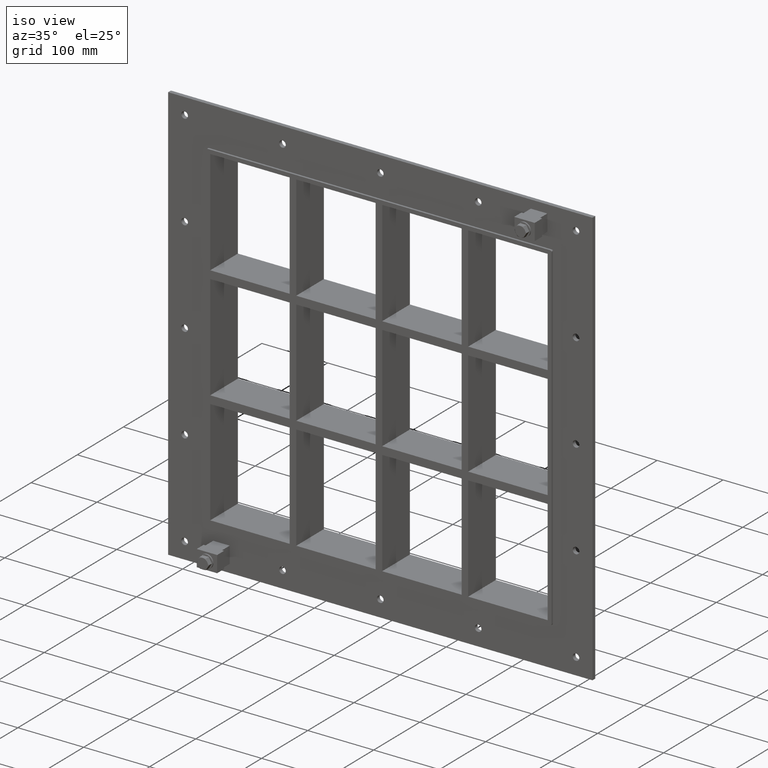
[diagram: clean part render]
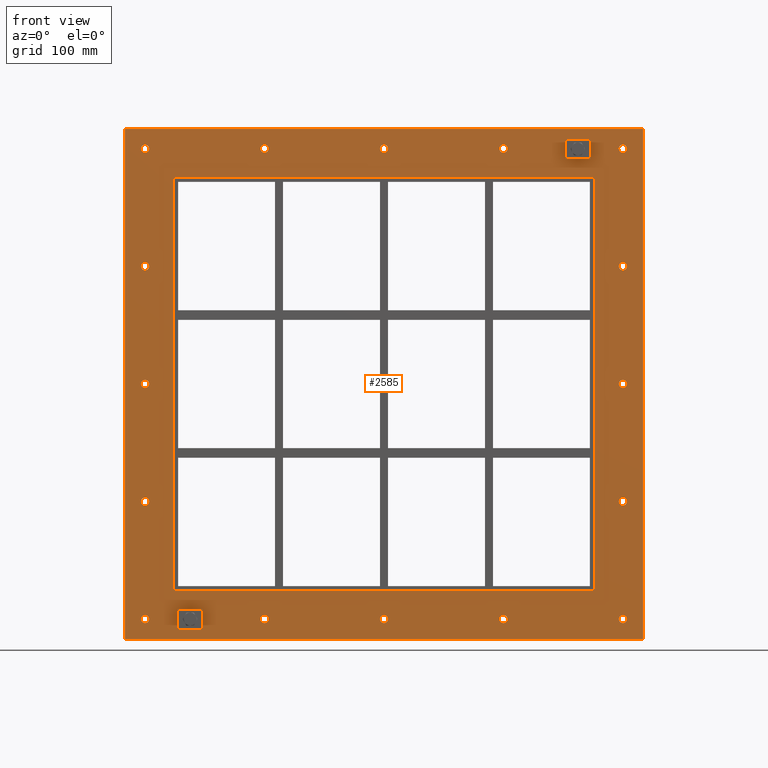
[diagram: tour spotlight — one face highlighted and labeled with its STEP entity id]
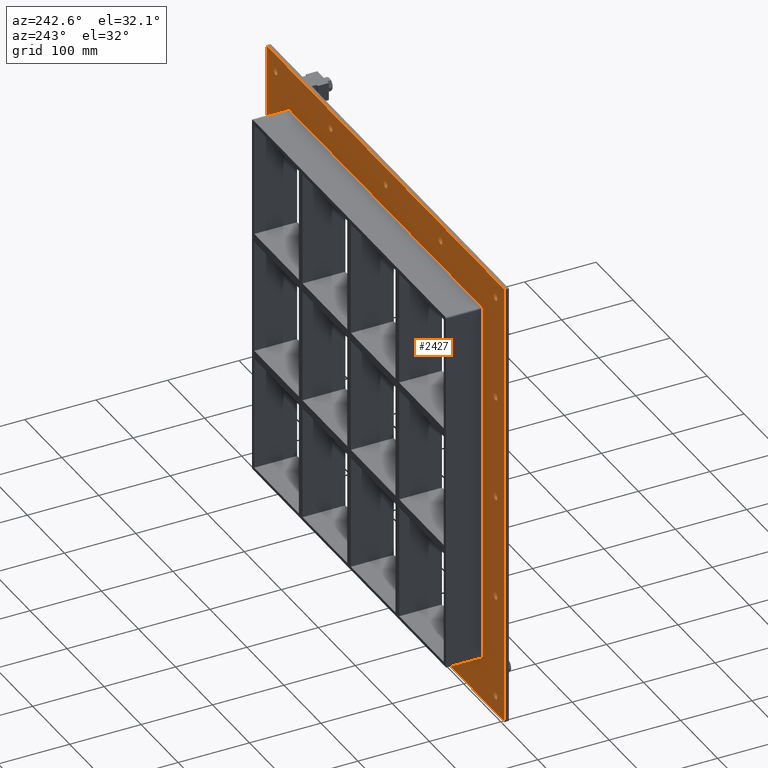
[diagram: tour spotlight — one face highlighted and labeled with its STEP entity id]
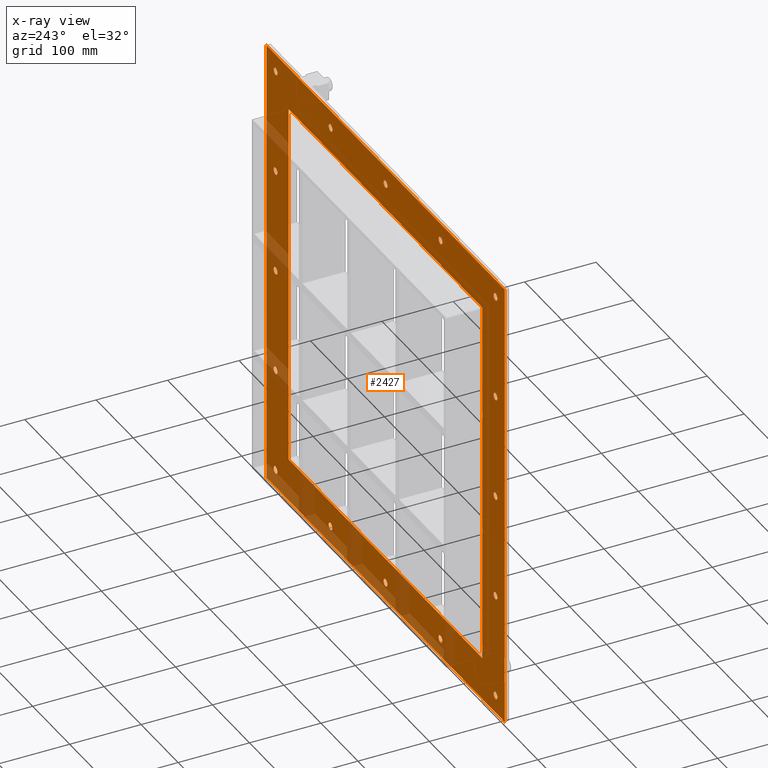
[diagram: x-ray of the same camera — body ghosted, this tour face saturated]
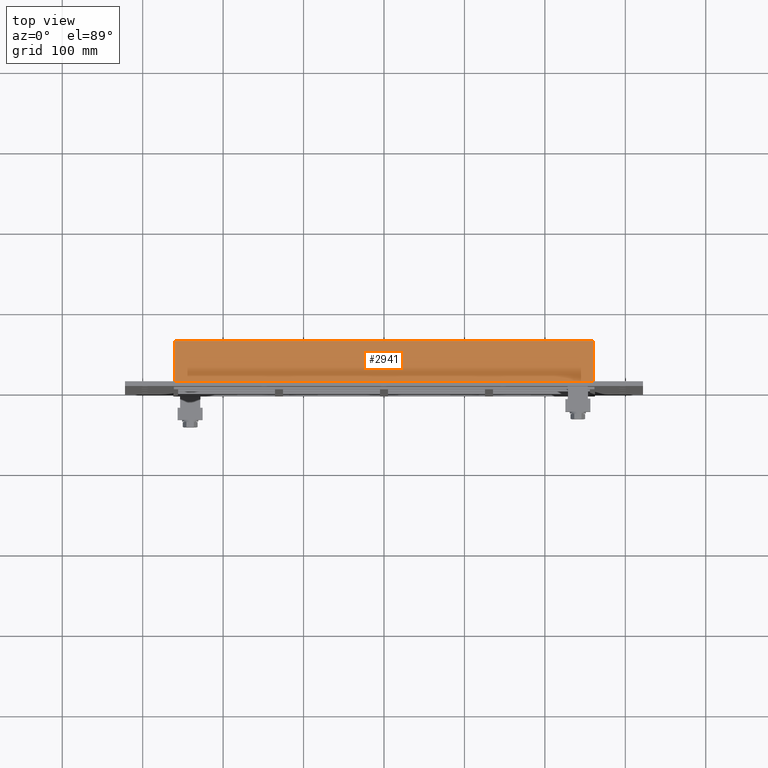
[diagram: tour spotlight — one face highlighted and labeled with its STEP entity id]
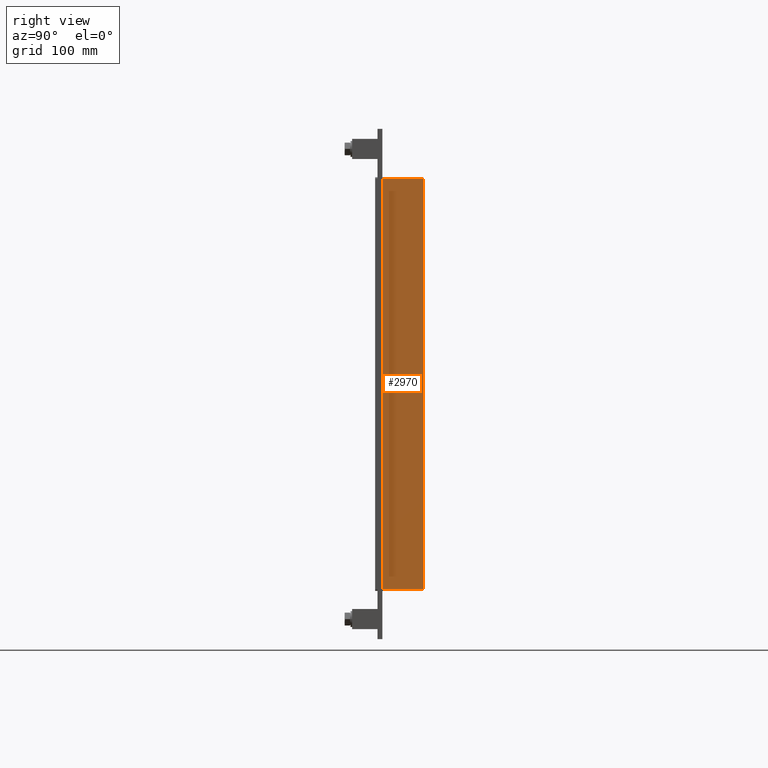
[diagram: tour spotlight — one face highlighted and labeled with its STEP entity id]
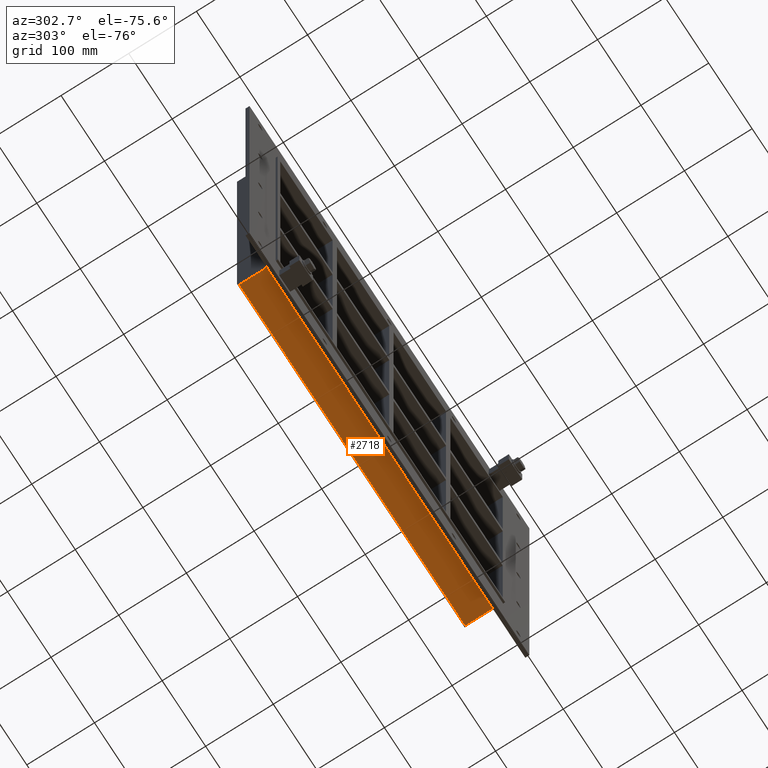
[diagram: tour spotlight — one face highlighted and labeled with its STEP entity id]
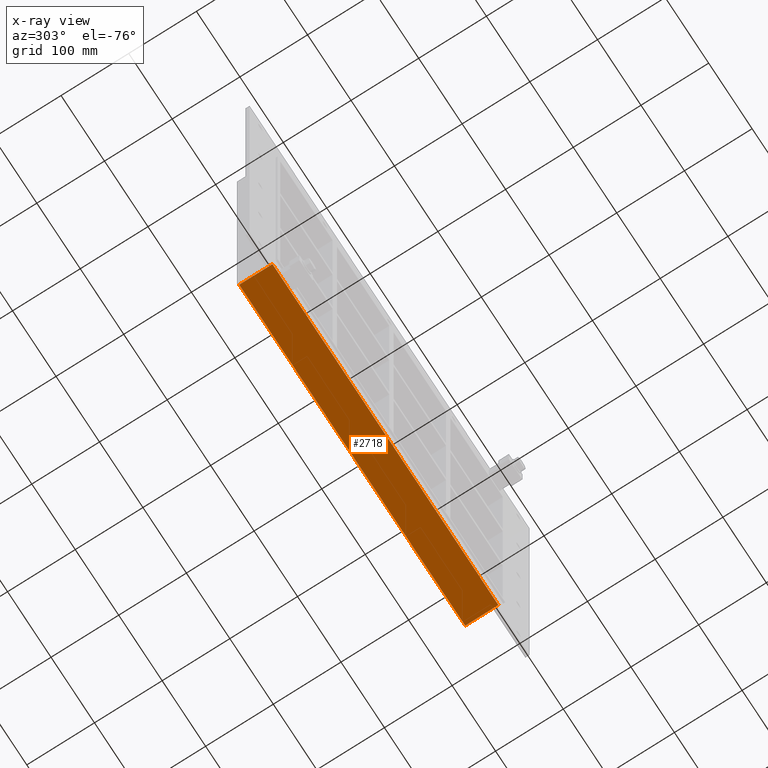
[diagram: x-ray of the same camera — body ghosted, this tour face saturated]
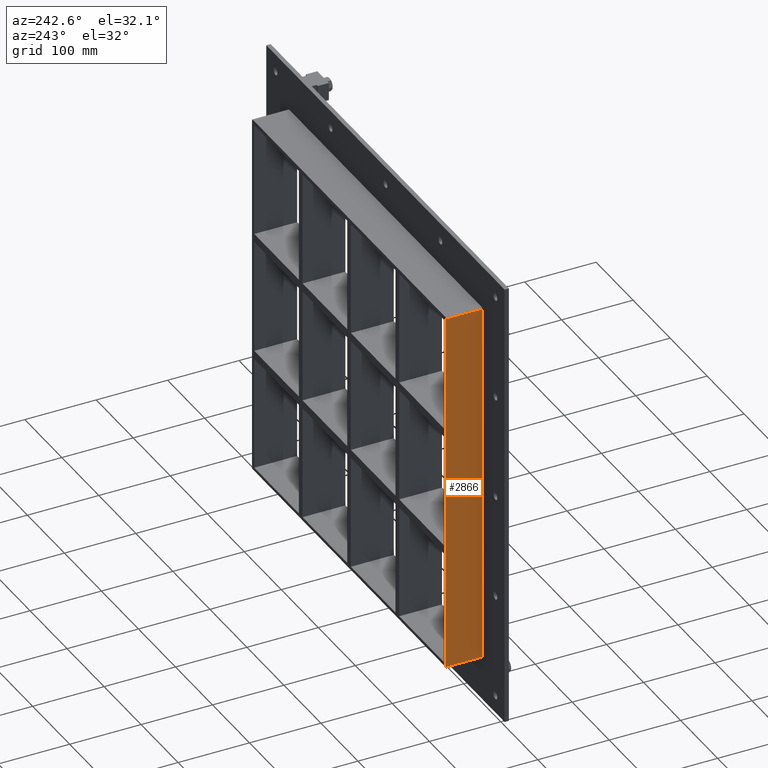
[diagram: tour spotlight — one face highlighted and labeled with its STEP entity id]
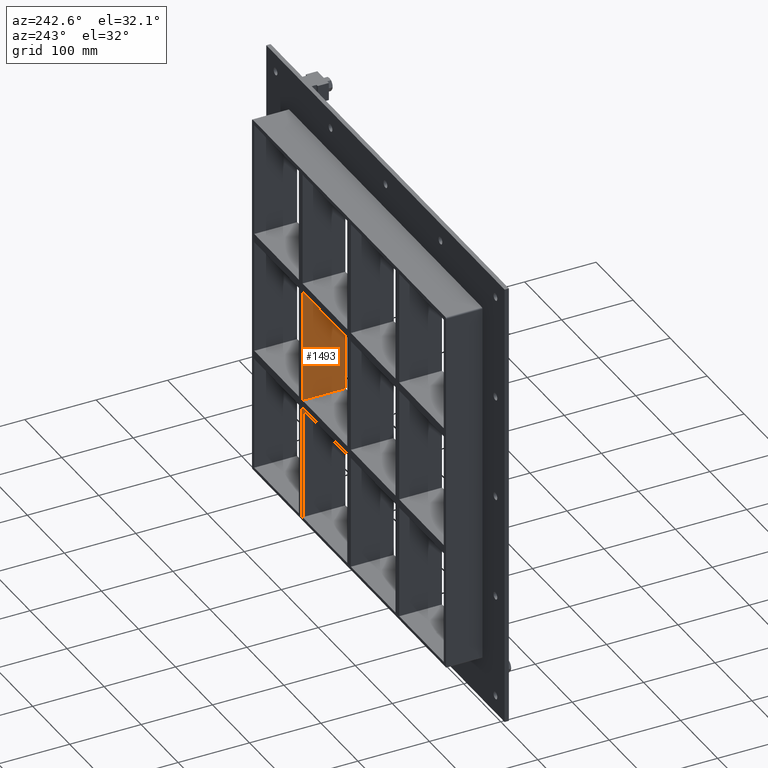
[diagram: tour spotlight — one face highlighted and labeled with its STEP entity id]
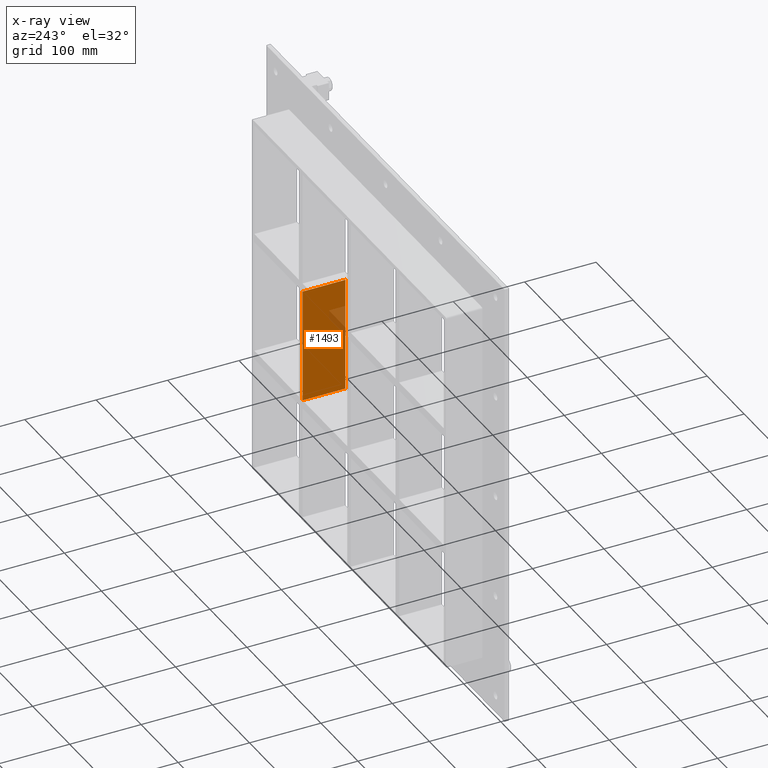
[diagram: x-ray of the same camera — body ghosted, this tour face saturated]
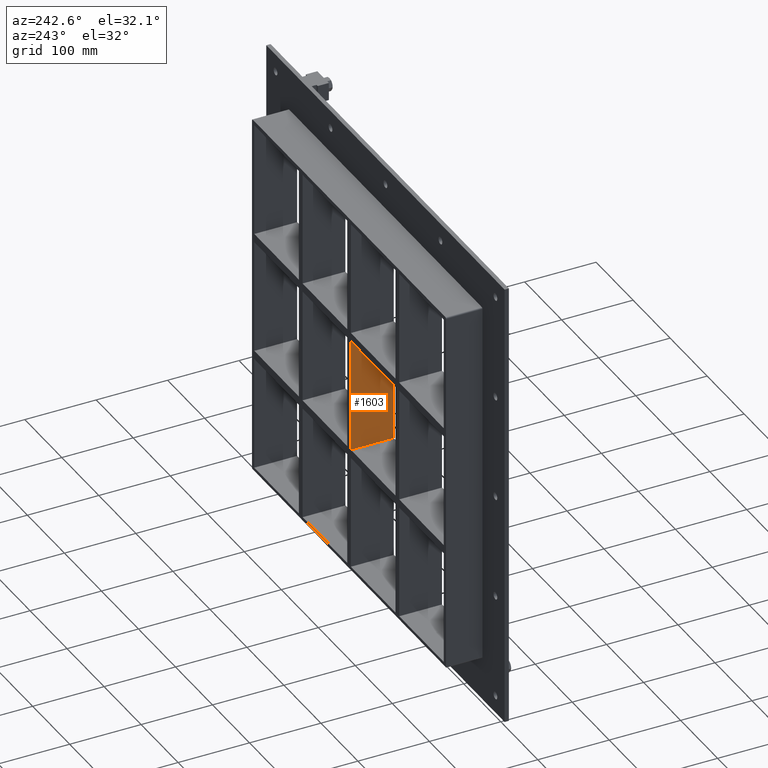
[diagram: tour spotlight — one face highlighted and labeled with its STEP entity id]
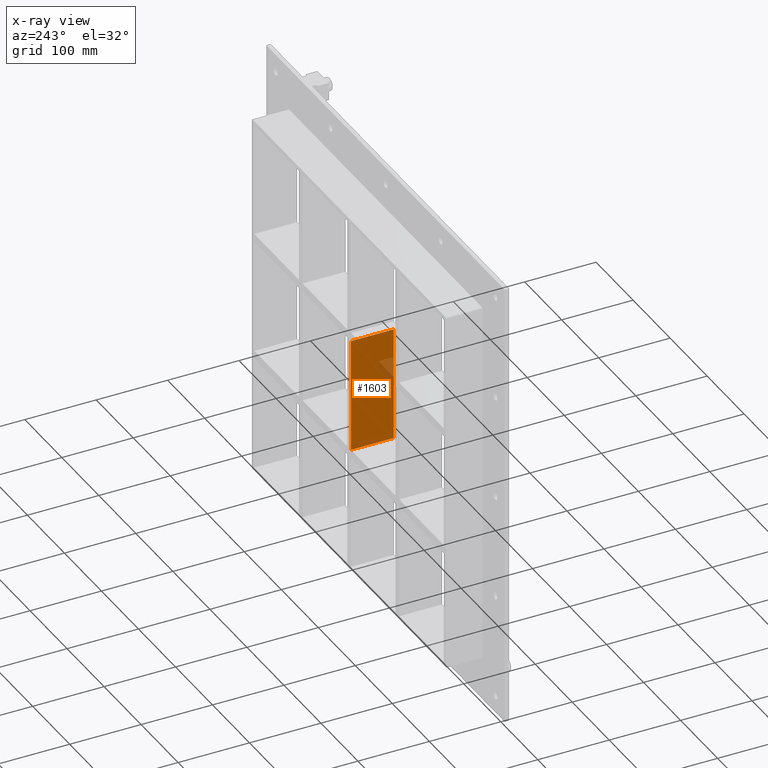
[diagram: x-ray of the same camera — body ghosted, this tour face saturated]
A machine part: a face-by-face anatomy tour. The part has 167 B-rep faces; the first image is the clean iso view, then the 8 largest visible faces are spotlighted one at a time (largest first), each with its STEP entity span.

Face 1 — front view, entity #2585. In plain terms, the highlighted planar face has unit normal (0, 1, 0).
Definition (entity closure, byte-faithful):
#84=CARTESIAN_POINT('',(-292.00000000000006,0.0,-292.25));
#85=VERTEX_POINT('',#84);
#86=CARTESIAN_POINT('',(-297.00000000000006,0.0,-292.25));
#87=DIRECTION('',(0.0,1.0,0.0));
#88=DIRECTION('',(1.0,0.0,0.0));
#89=AXIS2_PLACEMENT_3D('',#86,#87,#88);
#90=CIRCLE('',#89,5.0);
#91=EDGE_CURVE('',#85,#85,#90,.T.);
#112=CARTESIAN_POINT('',(302.0,0.0,-146.05000000000007));
#113=VERTEX_POINT('',#112);
#114=CARTESIAN_POINT('',(297.0,0.0,-146.05000000000007));
#115=DIRECTION('',(0.0,1.0,0.0));
#116=DIRECTION('',(1.0,0.0,0.0));
#117=AXIS2_PLACEMENT_3D('',#114,#115,#116);
#118=CIRCLE('',#117,5.0);
#119=EDGE_CURVE('',#113,#113,#118,.T.);
#140=CARTESIAN_POINT('',(-292.00000000000006,0.0,-146.05000000000007));
#141=VERTEX_POINT('',#140);
#142=CARTESIAN_POINT('',(-297.00000000000006,0.0,-146.05000000000007));
#143=DIRECTION('',(0.0,1.0,0.0));
#144=DIRECTION('',(1.0,0.0,0.0));
#145=AXIS2_PLACEMENT_3D('',#142,#143,#144);
#146=CIRCLE('',#145,5.0);
#147=EDGE_CURVE('',#141,#141,#146,.T.);
#168=CARTESIAN_POINT('',(302.0,0.0,0.14999999999997));
#169=VERTEX_POINT('',#168);
#170=CARTESIAN_POINT('',(297.0,0.0,0.14999999999997));
#171=DIRECTION('',(0.0,1.0,0.0));
#172=DIRECTION('',(1.0,0.0,0.0));
#173=AXIS2_PLACEMENT_3D('',#170,#171,#172);
#174=CIRCLE('',#173,5.0);
#175=EDGE_CURVE('',#169,#169,#174,.T.);
#196=CARTESIAN_POINT('',(-292.00000000000006,0.0,0.14999999999997));
#197=VERTEX_POINT('',#196);
#198=CARTESIAN_POINT('',(-297.00000000000006,0.0,0.14999999999997));
#199=DIRECTION('',(0.0,1.0,0.0));
#200=DIRECTION('',(1.0,0.0,0.0));
#201=AXIS2_PLACEMENT_3D('',#198,#199,#200);
#202=CIRCLE('',#201,5.0);
#203=EDGE_CURVE('',#197,#197,#202,.T.);
#224=CARTESIAN_POINT('',(302.0,0.0,146.34999999999997));
#225=VERTEX_POINT('',#224);
#226=CARTESIAN_POINT('',(297.0,0.0,146.34999999999997));
#227=DIRECTION('',(0.0,1.0,0.0));
#228=DIRECTION('',(1.0,0.0,0.0));
#229=AXIS2_PLACEMENT_3D('',#226,#227,#228);
#230=CIRCLE('',#229,5.0);
#231=EDGE_CURVE('',#225,#225,#230,.T.);
#252=CARTESIAN_POINT('',(-292.00000000000006,0.0,146.34999999999997));
#253=VERTEX_POINT('',#252);
#254=CARTESIAN_POINT('',(-297.00000000000006,0.0,146.34999999999997));
#255=DIRECTION('',(0.0,1.0,0.0));
#256=DIRECTION('',(1.0,0.0,0.0));
#257=AXIS2_PLACEMENT_3D('',#254,#255,#256);
#258=CIRCLE('',#257,5.0);
#259=EDGE_CURVE('',#253,#253,#258,.T.);
#280=CARTESIAN_POINT('',(-143.50000000000006,0.0,292.54999999999995));
#281=VERTEX_POINT('',#280);
#282=CARTESIAN_POINT('',(-148.50000000000006,0.0,292.54999999999995));
#283=DIRECTION('',(0.0,1.0,0.0));
#284=DIRECTION('',(1.0,0.0,0.0));
#285=AXIS2_PLACEMENT_3D('',#282,#283,#284);
#286=CIRCLE('',#285,5.0);
#287=EDGE_CURVE('',#281,#281,#286,.T.);
#308=CARTESIAN_POINT('',(-143.50000000000009,0.0,-292.25));
#309=VERTEX_POINT('',#308);
#310=CARTESIAN_POINT('',(-148.50000000000009,0.0,-292.25));
#311=DIRECTION('',(0.0,1.0,0.0));
#312=DIRECTION('',(1.0,0.0,0.0));
#313=AXIS2_PLACEMENT_3D('',#310,#311,#312);
#314=CIRCLE('',#313,5.0);
#315=EDGE_CURVE('',#309,#309,#314,.T.);
#336=CARTESIAN_POINT('',(4.999999999999965,0.0,292.54999999999995));
#337=VERTEX_POINT('',#336);
#338=CARTESIAN_POINT('',(-3.552714E-014,0.0,292.54999999999995));
#339=DIRECTION('',(0.0,1.0,0.0));
#340=DIRECTION('',(1.0,0.0,0.0));
#341=AXIS2_PLACEMENT_3D('',#338,#339,#340);
#342=CIRCLE('',#341,5.0);
#343=EDGE_CURVE('',#337,#337,#342,.T.);
#364=CARTESIAN_POINT('',(4.999999999999929,0.0,-292.25));
#365=VERTEX_POINT('',#364);
#366=CARTESIAN_POINT('',(-7.105427E-014,0.0,-292.25));
#367=DIRECTION('',(0.0,1.0,0.0));
#368=DIRECTION('',(1.0,0.0,0.0));
#369=AXIS2_PLACEMENT_3D('',#366,#367,#368);
#370=CIRCLE('',#369,5.0);
#371=EDGE_CURVE('',#365,#365,#370,.T.);
#392=CARTESIAN_POINT('',(153.49999999999997,0.0,292.54999999999995));
#393=VERTEX_POINT('',#392);
#394=CARTESIAN_POINT('',(148.49999999999997,0.0,292.54999999999995));
#395=DIRECTION('',(0.0,1.0,0.0));
#396=DIRECTION('',(1.0,0.0,0.0));
#397=AXIS2_PLACEMENT_3D('',#394,#395,#396);
#398=CIRCLE('',#397,5.0);
#399=EDGE_CURVE('',#393,#393,#398,.T.);
#420=CARTESIAN_POINT('',(153.49999999999994,0.0,-292.25));
#421=VERTEX_POINT('',#420);
#422=CARTESIAN_POINT('',(148.49999999999994,0.0,-292.25));
#423=DIRECTION('',(0.0,1.0,0.0));
#424=DIRECTION('',(1.0,0.0,0.0));
#425=AXIS2_PLACEMENT_3D('',#422,#423,#424);
#426=CIRCLE('',#425,5.0);
#427=EDGE_CURVE('',#421,#421,#426,.T.);
#448=CARTESIAN_POINT('',(301.99999999999994,0.0,-292.25));
#449=VERTEX_POINT('',#448);
#450=CARTESIAN_POINT('',(296.99999999999994,0.0,-292.25));
#451=DIRECTION('',(0.0,1.0,0.0));
#452=DIRECTION('',(1.0,0.0,0.0));
#453=AXIS2_PLACEMENT_3D('',#450,#451,#452);
#454=CIRCLE('',#453,5.0);
#455=EDGE_CURVE('',#449,#449,#454,.T.);
#476=CARTESIAN_POINT('',(-292.00000000000006,0.0,292.54999999999995));
#477=VERTEX_POINT('',#476);
#478=CARTESIAN_POINT('',(-297.00000000000006,0.0,292.54999999999995));
#479=DIRECTION('',(0.0,1.0,0.0));
#480=DIRECTION('',(1.0,0.0,0.0));
#481=AXIS2_PLACEMENT_3D('',#478,#479,#480);
#482=CIRCLE('',#481,5.0);
#483=EDGE_CURVE('',#477,#477,#482,.T.);
#504=CARTESIAN_POINT('',(302.0,0.0,292.54999999999995));
#505=VERTEX_POINT('',#504);
#506=CARTESIAN_POINT('',(297.0,0.0,292.54999999999995));
#507=DIRECTION('',(0.0,1.0,0.0));
#508=DIRECTION('',(1.0,0.0,0.0));
#509=AXIS2_PLACEMENT_3D('',#506,#507,#508);
#510=CIRCLE('',#509,5.0);
#511=EDGE_CURVE('',#505,#505,#510,.T.);
#2428=CARTESIAN_POINT('',(0.0,0.0,0.0));
#2429=DIRECTION('',(0.0,1.0,0.0));
#2430=DIRECTION('',(0.0,0.0,1.0));
#2431=AXIS2_PLACEMENT_3D('',#2428,#2429,#2430);
#2432=PLANE('',#2431);
#2433=CARTESIAN_POINT('',(-321.99999999999994,0.0,317.25));
#2434=VERTEX_POINT('',#2433);
#2435=CARTESIAN_POINT('',(321.99999999999994,0.0,317.25));
#2436=VERTEX_POINT('',#2435);
#2437=CARTESIAN_POINT('',(-321.99999999999994,0.0,317.25));
#2438=DIRECTION('',(1.0,0.0,0.0));
#2439=VECTOR('',#2438,643.99999999999989);
#2440=LINE('',#2437,#2439);
#2441=EDGE_CURVE('',#2434,#2436,#2440,.T.);
#2442=ORIENTED_EDGE('',*,*,#2441,.F.);
#2443=CARTESIAN_POINT('',(-321.99999999999994,0.0,-317.25));
#2444=VERTEX_POINT('',#2443);
#2445=CARTESIAN_POINT('',(-321.99999999999994,0.0,-317.25));
#2446=DIRECTION('',(0.0,0.0,1.0));
#2447=VECTOR('',#2446,634.5);
#2448=LINE('',#2445,#2447);
#2449=EDGE_CURVE('',#2444,#2434,#2448,.T.);
#2450=ORIENTED_EDGE('',*,*,#2449,.F.);
#2451=CARTESIAN_POINT('',(321.99999999999994,0.0,-317.25));
#2452=VERTEX_POINT('',#2451);
#2453=CARTESIAN_POINT('',(321.99999999999994,0.0,-317.25));
#2454=DIRECTION('',(-1.0,0.0,0.0));
#2455=VECTOR('',#2454,643.99999999999989);
#2456=LINE('',#2453,#2455);
#2457=EDGE_CURVE('',#2452,#2444,#2456,.T.);
#2458=ORIENTED_EDGE('',*,*,#2457,.F.);
#2459=CARTESIAN_POINT('',(321.99999999999994,0.0,317.25));
#2460=DIRECTION('',(0.0,0.0,-1.0));
#2461=VECTOR('',#2460,634.5);
#2462=LINE('',#2459,#2461);
#2463=EDGE_CURVE('',#2436,#2452,#2462,.T.);
#2464=ORIENTED_EDGE('',*,*,#2463,.F.);
#2465=EDGE_LOOP('',(#2442,#2450,#2458,#2464));
#2466=FACE_OUTER_BOUND('',#2465,.T.);
#2467=ORIENTED_EDGE('',*,*,#91,.T.);
#2468=EDGE_LOOP('',(#2467));
#2469=FACE_BOUND('',#2468,.T.);
#2470=ORIENTED_EDGE('',*,*,#119,.T.);
#2471=EDGE_LOOP('',(#2470));
#2472=FACE_BOUND('',#2471,.T.);
#2473=ORIENTED_EDGE('',*,*,#147,.T.);
#2474=EDGE_LOOP('',(#2473));
#2475=FACE_BOUND('',#2474,.T.);
#2476=ORIENTED_EDGE('',*,*,#175,.T.);
#2477=EDGE_LOOP('',(#2476));
#2478=FACE_BOUND('',#2477,.T.);
#2479=ORIENTED_EDGE('',*,*,#203,.T.);
#2480=EDGE_LOOP('',(#2479));
#2481=FACE_BOUND('',#2480,.T.);
#2482=ORIENTED_EDGE('',*,*,#231,.T.);
#2483=EDGE_LOOP('',(#2482));
#2484=FACE_BOUND('',#2483,.T.);
#2485=ORIENTED_EDGE('',*,*,#259,.T.);
#2486=EDGE_LOOP('',(#2485));
#2487=FACE_BOUND('',#2486,.T.);
#2488=ORIENTED_EDGE('',*,*,#287,.T.);
#2489=EDGE_LOOP('',(#2488));
#2490=FACE_BOUND('',#2489,.T.);
#2491=ORIENTED_EDGE('',*,*,#315,.T.);
#2492=EDGE_LOOP('',(#2491));
#2493=FACE_BOUND('',#2492,.T.);
#2494=ORIENTED_EDGE('',*,*,#343,.T.);
#2495=EDGE_LOOP('',(#2494));
#2496=FACE_BOUND('',#2495,.T.);
#2497=ORIENTED_EDGE('',*,*,#371,.T.);
#2498=EDGE_LOOP('',(#2497));
#2499=FACE_BOUND('',#2498,.T.);
#2500=ORIENTED_EDGE('',*,*,#399,.T.);
#2501=EDGE_LOOP('',(#2500));
#2502=FACE_BOUND('',#2501,.T.);
#2503=ORIENTED_EDGE('',*,*,#427,.T.);
#2504=EDGE_LOOP('',(#2503));
#2505=FACE_BOUND('',#2504,.T.);
#2506=ORIENTED_EDGE('',*,*,#455,.T.);
#2507=EDGE_LOOP('',(#2506));
#2508=FACE_BOUND('',#2507,.T.);
#2509=ORIENTED_EDGE('',*,*,#483,.T.);
#2510=EDGE_LOOP('',(#2509));
#2511=FACE_BOUND('',#2510,.T.);
#2512=ORIENTED_EDGE('',*,*,#511,.T.);
#2513=EDGE_LOOP('',(#2512));
#2514=FACE_BOUND('',#2513,.T.);
#2515=CARTESIAN_POINT('',(-260.0,0.0,257.25));
#2516=VERTEX_POINT('',#2515);
#2517=CARTESIAN_POINT('',(-262.0,0.0,255.25));
#2518=VERTEX_POINT('',#2517);
#2519=CARTESIAN_POINT('',(-260.0,0.0,255.25));
#2520=DIRECTION('',(0.0,-1.0,0.0));
#2521=DIRECTION('',(-0.707106781186548,0.0,0.707106781186548));
#2522=AXIS2_PLACEMENT_3D('',#2519,#2520,#2521);
#2523=CIRCLE('',#2522,2.0);
#2524=EDGE_CURVE('',#2516,#2518,#2523,.T.);
#2525=ORIENTED_EDGE('',*,*,#2524,.F.);
#2526=CARTESIAN_POINT('',(260.0,0.0,257.25));
#2527=VERTEX_POINT('',#2526);
#2528=CARTESIAN_POINT('',(260.0,0.0,257.25));
#2529=DIRECTION('',(-1.0,0.0,0.0));
#2530=VECTOR('',#2529,520.0);
#2531=LINE('',#2528,#2530);
#2532=EDGE_CURVE('',#2527,#2516,#2531,.T.);
#2533=ORIENTED_EDGE('',*,*,#2532,.F.);
#2534=CARTESIAN_POINT('',(262.0,0.0,255.25000000000003));
#2535=VERTEX_POINT('',#2534);
#2536=CARTESIAN_POINT('',(260.0,0.0,255.25000000000003));
#2537=DIRECTION('',(0.0,-1.0,0.0));
#2538=DIRECTION('',(0.70710678118656,0.0,0.707106781186535));
#2539=AXIS2_PLACEMENT_3D('',#2536,#2537,#2538);
#2540=CIRCLE('',#2539,2.0);
#2541=EDGE_CURVE('',#2535,#2527,#2540,.T.);
#2542=ORIENTED_EDGE('',*,*,#2541,.F.);
#2543=CARTESIAN_POINT('',(262.0,0.0,-255.25));
#2544=VERTEX_POINT('',#2543);
#2545=CARTESIAN_POINT('',(262.0,0.0,-255.25));
#2546=DIRECTION('',(0.0,0.0,1.0));
#2547=VECTOR('',#2546,510.5);
#2548=LINE('',#2545,#2547);
#2549=EDGE_CURVE('',#2544,#2535,#2548,.T.);
#2550=ORIENTED_EDGE('',*,*,#2549,.F.);
#2551=CARTESIAN_POINT('',(260.0,0.0,-257.25));
#2552=VERTEX_POINT('',#2551);
#2553=CARTESIAN_POINT('',(260.0,0.0,-255.25));
#2554=DIRECTION('',(0.0,-1.0,0.0));
#2555=DIRECTION('',(0.707106781186548,0.0,-0.707106781186548));
#2556=AXIS2_PLACEMENT_3D('',#2553,#2554,#2555);
#2557=CIRCLE('',#2556,2.0);
#2558=EDGE_CURVE('',#2552,#2544,#2557,.T.);
#2559=ORIENTED_EDGE('',*,*,#2558,.F.);
#2560=CARTESIAN_POINT('',(-260.0,0.0,-257.25));
#2561=VERTEX_POINT('',#2560);
#2562=CARTESIAN_POINT('',(-260.0,0.0,-257.25));
#2563=DIRECTION('',(1.0,0.0,0.0));
#2564=VECTOR('',#2563,520.0);
#2565=LINE('',#2562,#2564);
#2566=EDGE_CURVE('',#2561,#2552,#2565,.T.);
#2567=ORIENTED_EDGE('',*,*,#2566,.F.);
#2568=CARTESIAN_POINT('',(-262.0,0.0,-255.25));
#2569=VERTEX_POINT('',#2568);
#2570=CARTESIAN_POINT('',(-260.0,0.0,-255.25));
#2571=DIRECTION('',(0.0,-1.0,0.0));
#2572=DIRECTION('',(-0.707106781186548,0.0,-0.707106781186548));
#2573=AXIS2_PLACEMENT_3D('',#2570,#2571,#2572);
#2574=CIRCLE('',#2573,2.0);
#2575=EDGE_CURVE('',#2569,#2561,#2574,.T.);
#2576=ORIENTED_EDGE('',*,*,#2575,.F.);
#2577=CARTESIAN_POINT('',(-262.0,0.0,255.25));
#2578=DIRECTION('',(0.0,0.0,-1.0));
#2579=VECTOR('',#2578,510.5);
#2580=LINE('',#2577,#2579);
#2581=EDGE_CURVE('',#2518,#2569,#2580,.T.);
#2582=ORIENTED_EDGE('',*,*,#2581,.F.);
#2583=EDGE_LOOP('',(#2525,#2533,#2542,#2550,#2559,#2567,#2576,#2582));
#2584=FACE_BOUND('',#2583,.T.);
#2585=ADVANCED_FACE('',(#2466,#2469,#2472,#2475,#2478,#2481,#2484,#2487,#2490,#2493,#2496,#2499,#2502,#2505,#2508,#2511,#2514,#2584),#2432,.F.);

Face 2 — auxiliary view, entity #2427. An x-ray twin of the same camera follows (body ghosted, this face saturated) — the face is partly hidden behind the body. In plain terms, the highlighted planar face has unit normal (0, 1, 0).
Definition (entity closure, byte-faithful):
#73=CARTESIAN_POINT('',(-302.00000000000006,5.999999999999943,-292.25));
#74=VERTEX_POINT('',#73);
#75=CARTESIAN_POINT('',(-297.00000000000006,5.999999999999943,-292.25));
#76=DIRECTION('',(0.0,-1.0,0.0));
#77=DIRECTION('',(1.0,0.0,0.0));
#78=AXIS2_PLACEMENT_3D('',#75,#76,#77);
#79=CIRCLE('',#78,5.0);
#80=EDGE_CURVE('',#74,#74,#79,.T.);
#101=CARTESIAN_POINT('',(292.0,5.999999999999943,-146.05000000000007));
#102=VERTEX_POINT('',#101);
#103=CARTESIAN_POINT('',(297.0,5.999999999999943,-146.05000000000007));
#104=DIRECTION('',(0.0,-1.0,0.0));
#105=DIRECTION('',(1.0,0.0,0.0));
#106=AXIS2_PLACEMENT_3D('',#103,#104,#105);
#107=CIRCLE('',#106,5.0);
#108=EDGE_CURVE('',#102,#102,#107,.T.);
#129=CARTESIAN_POINT('',(-302.00000000000006,5.999999999999943,-146.05000000000007));
#130=VERTEX_POINT('',#129);
#131=CARTESIAN_POINT('',(-297.00000000000006,5.999999999999943,-146.05000000000007));
#132=DIRECTION('',(0.0,-1.0,0.0));
#133=DIRECTION('',(1.0,0.0,0.0));
#134=AXIS2_PLACEMENT_3D('',#131,#132,#133);
#135=CIRCLE('',#134,5.0);
#136=EDGE_CURVE('',#130,#130,#135,.T.);
#157=CARTESIAN_POINT('',(292.0,5.999999999999943,0.14999999999997));
#158=VERTEX_POINT('',#157);
#159=CARTESIAN_POINT('',(297.0,5.999999999999943,0.14999999999997));
#160=DIRECTION('',(0.0,-1.0,0.0));
#161=DIRECTION('',(1.0,0.0,0.0));
#162=AXIS2_PLACEMENT_3D('',#159,#160,#161);
#163=CIRCLE('',#162,5.0);
#164=EDGE_CURVE('',#158,#158,#163,.T.);
#185=CARTESIAN_POINT('',(-302.00000000000006,5.999999999999943,0.14999999999997));
#186=VERTEX_POINT('',#185);
#187=CARTESIAN_POINT('',(-297.00000000000006,5.999999999999943,0.14999999999997));
#188=DIRECTION('',(0.0,-1.0,0.0));
#189=DIRECTION('',(1.0,0.0,0.0));
#190=AXIS2_PLACEMENT_3D('',#187,#188,#189);
#191=CIRCLE('',#190,5.0);
#192=EDGE_CURVE('',#186,#186,#191,.T.);
#213=CARTESIAN_POINT('',(292.0,5.999999999999943,146.34999999999997));
#214=VERTEX_POINT('',#213);
#215=CARTESIAN_POINT('',(297.0,5.999999999999943,146.34999999999997));
#216=DIRECTION('',(0.0,-1.0,0.0));
#217=DIRECTION('',(1.0,0.0,0.0));
#218=AXIS2_PLACEMENT_3D('',#215,#216,#217);
#219=CIRCLE('',#218,5.0);
#220=EDGE_CURVE('',#214,#214,#219,.T.);
#241=CARTESIAN_POINT('',(-302.00000000000006,5.999999999999943,146.34999999999997));
#242=VERTEX_POINT('',#241);
#243=CARTESIAN_POINT('',(-297.00000000000006,5.999999999999943,146.34999999999997));
#244=DIRECTION('',(0.0,-1.0,0.0));
#245=DIRECTION('',(1.0,0.0,0.0));
#246=AXIS2_PLACEMENT_3D('',#243,#244,#245);
#247=CIRCLE('',#246,5.0);
#248=EDGE_CURVE('',#242,#242,#247,.T.);
#269=CARTESIAN_POINT('',(-153.50000000000006,5.999999999999943,292.54999999999995));
#270=VERTEX_POINT('',#269);
#271=CARTESIAN_POINT('',(-148.50000000000006,5.999999999999943,292.54999999999995));
#272=DIRECTION('',(0.0,-1.0,0.0));
#273=DIRECTION('',(1.0,0.0,0.0));
#274=AXIS2_PLACEMENT_3D('',#271,#272,#273);
#275=CIRCLE('',#274,5.0);
#276=EDGE_CURVE('',#270,#270,#275,.T.);
#297=CARTESIAN_POINT('',(-153.50000000000009,5.999999999999943,-292.25));
#298=VERTEX_POINT('',#297);
#299=CARTESIAN_POINT('',(-148.50000000000009,5.999999999999943,-292.25));
#300=DIRECTION('',(0.0,-1.0,0.0));
#301=DIRECTION('',(1.0,0.0,0.0));
#302=AXIS2_PLACEMENT_3D('',#299,#300,#301);
#303=CIRCLE('',#302,5.0);
#304=EDGE_CURVE('',#298,#298,#303,.T.);
#325=CARTESIAN_POINT('',(-5.000000000000036,5.999999999999943,292.54999999999995));
#326=VERTEX_POINT('',#325);
#327=CARTESIAN_POINT('',(-3.552714E-014,5.999999999999943,292.54999999999995));
#328=DIRECTION('',(0.0,-1.0,0.0));
#329=DIRECTION('',(1.0,0.0,0.0));
#330=AXIS2_PLACEMENT_3D('',#327,#328,#329);
#331=CIRCLE('',#330,5.0);
#332=EDGE_CURVE('',#326,#326,#331,.T.);
#353=CARTESIAN_POINT('',(-5.000000000000071,5.999999999999943,-292.25));
#354=VERTEX_POINT('',#353);
#355=CARTESIAN_POINT('',(-7.105427E-014,5.999999999999943,-292.25));
#356=DIRECTION('',(0.0,-1.0,0.0));
#357=DIRECTION('',(1.0,0.0,0.0));
#358=AXIS2_PLACEMENT_3D('',#355,#356,#357);
#359=CIRCLE('',#358,5.0);
#360=EDGE_CURVE('',#354,#354,#359,.T.);
#381=CARTESIAN_POINT('',(143.49999999999997,5.999999999999943,292.54999999999995));
#382=VERTEX_POINT('',#381);
#383=CARTESIAN_POINT('',(148.49999999999997,5.999999999999943,292.54999999999995));
#384=DIRECTION('',(0.0,-1.0,0.0));
#385=DIRECTION('',(1.0,0.0,0.0));
#386=AXIS2_PLACEMENT_3D('',#383,#384,#385);
#387=CIRCLE('',#386,5.0);
#388=EDGE_CURVE('',#382,#382,#387,.T.);
#409=CARTESIAN_POINT('',(143.49999999999994,5.999999999999943,-292.25));
#410=VERTEX_POINT('',#409);
#411=CARTESIAN_POINT('',(148.49999999999994,5.999999999999943,-292.25));
#412=DIRECTION('',(0.0,-1.0,0.0));
#413=DIRECTION('',(1.0,0.0,0.0));
#414=AXIS2_PLACEMENT_3D('',#411,#412,#413);
#415=CIRCLE('',#414,5.0);
#416=EDGE_CURVE('',#410,#410,#415,.T.);
#437=CARTESIAN_POINT('',(291.99999999999994,5.999999999999943,-292.25));
#438=VERTEX_POINT('',#437);
#439=CARTESIAN_POINT('',(296.99999999999994,5.999999999999943,-292.25));
#440=DIRECTION('',(0.0,-1.0,0.0));
#441=DIRECTION('',(1.0,0.0,0.0));
#442=AXIS2_PLACEMENT_3D('',#439,#440,#441);
#443=CIRCLE('',#442,5.0);
#444=EDGE_CURVE('',#438,#438,#443,.T.);
#465=CARTESIAN_POINT('',(-302.00000000000006,5.999999999999943,292.54999999999995));
#466=VERTEX_POINT('',#465);
#467=CARTESIAN_POINT('',(-297.00000000000006,5.999999999999943,292.54999999999995));
#468=DIRECTION('',(0.0,-1.0,0.0));
#469=DIRECTION('',(1.0,0.0,0.0));
#470=AXIS2_PLACEMENT_3D('',#467,#468,#469);
#471=CIRCLE('',#470,5.0);
#472=EDGE_CURVE('',#466,#466,#471,.T.);
#493=CARTESIAN_POINT('',(292.0,5.999999999999943,292.54999999999995));
#494=VERTEX_POINT('',#493);
#495=CARTESIAN_POINT('',(297.0,5.999999999999943,292.54999999999995));
#496=DIRECTION('',(0.0,-1.0,0.0));
#497=DIRECTION('',(1.0,0.0,0.0));
#498=AXIS2_PLACEMENT_3D('',#495,#496,#497);
#499=CIRCLE('',#498,5.0);
#500=EDGE_CURVE('',#494,#494,#499,.T.);
#2270=CARTESIAN_POINT('',(0.0,6.000000000000001,0.0));
#2271=DIRECTION('',(0.0,1.0,0.0));
#2272=DIRECTION('',(0.0,0.0,1.0));
#2273=AXIS2_PLACEMENT_3D('',#2270,#2271,#2272);
#2274=PLANE('',#2273);
#2275=CARTESIAN_POINT('',(-321.99999999999994,6.000000000000001,317.25));
#2276=VERTEX_POINT('',#2275);
#2277=CARTESIAN_POINT('',(321.99999999999994,6.000000000000001,317.25));
#2278=VERTEX_POINT('',#2277);
#2279=CARTESIAN_POINT('',(-321.99999999999994,6.000000000000001,317.25));
#2280=DIRECTION('',(1.0,0.0,0.0));
#2281=VECTOR('',#2280,643.99999999999989);
#2282=LINE('',#2279,#2281);
#2283=EDGE_CURVE('',#2276,#2278,#2282,.T.);
#2284=ORIENTED_EDGE('',*,*,#2283,.T.);
#2285=CARTESIAN_POINT('',(321.99999999999994,6.000000000000001,-317.25));
#2286=VERTEX_POINT('',#2285);
#2287=CARTESIAN_POINT('',(321.99999999999994,6.000000000000001,317.25));
#2288=DIRECTION('',(0.0,0.0,-1.0));
#2289=VECTOR('',#2288,634.5);
#2290=LINE('',#2287,#2289);
#2291=EDGE_CURVE('',#2278,#2286,#2290,.T.);
#2292=ORIENTED_EDGE('',*,*,#2291,.T.);
#2293=CARTESIAN_POINT('',(-321.99999999999994,6.000000000000001,-317.25));
#2294=VERTEX_POINT('',#2293);
#2295=CARTESIAN_POINT('',(321.99999999999994,6.000000000000001,-317.25));
#2296=DIRECTION('',(-1.0,0.0,0.0));
#2297=VECTOR('',#2296,643.99999999999989);
#2298=LINE('',#2295,#2297);
#2299=EDGE_CURVE('',#2286,#2294,#2298,.T.);
#2300=ORIENTED_EDGE('',*,*,#2299,.T.);
#2301=CARTESIAN_POINT('',(-321.99999999999994,6.000000000000001,-317.25));
#2302=DIRECTION('',(0.0,0.0,1.0));
#2303=VECTOR('',#2302,634.5);
#2304=LINE('',#2301,#2303);
#2305=EDGE_CURVE('',#2294,#2276,#2304,.T.);
#2306=ORIENTED_EDGE('',*,*,#2305,.T.);
#2307=EDGE_LOOP('',(#2284,#2292,#2300,#2306));
#2308=FACE_OUTER_BOUND('',#2307,.T.);
#2309=ORIENTED_EDGE('',*,*,#80,.T.);
#2310=EDGE_LOOP('',(#2309));
#2311=FACE_BOUND('',#2310,.T.);
#2312=ORIENTED_EDGE('',*,*,#108,.T.);
#2313=EDGE_LOOP('',(#2312));
#2314=FACE_BOUND('',#2313,.T.);
#2315=ORIENTED_EDGE('',*,*,#136,.T.);
#2316=EDGE_LOOP('',(#2315));
#2317=FACE_BOUND('',#2316,.T.);
#2318=ORIENTED_EDGE('',*,*,#164,.T.);
#2319=EDGE_LOOP('',(#2318));
#2320=FACE_BOUND('',#2319,.T.);
#2321=ORIENTED_EDGE('',*,*,#192,.T.);
#2322=EDGE_LOOP('',(#2321));
#2323=FACE_BOUND('',#2322,.T.);
#2324=ORIENTED_EDGE('',*,*,#220,.T.);
#2325=EDGE_LOOP('',(#2324));
#2326=FACE_BOUND('',#2325,.T.);
#2327=ORIENTED_EDGE('',*,*,#248,.T.);
#2328=EDGE_LOOP('',(#2327));
#2329=FACE_BOUND('',#2328,.T.);
#2330=ORIENTED_EDGE('',*,*,#276,.T.);
#2331=EDGE_LOOP('',(#2330));
#2332=FACE_BOUND('',#2331,.T.);
#2333=ORIENTED_EDGE('',*,*,#304,.T.);
#2334=EDGE_LOOP('',(#2333));
#2335=FACE_BOUND('',#2334,.T.);
#2336=ORIENTED_EDGE('',*,*,#332,.T.);
#2337=EDGE_LOOP('',(#2336));
#2338=FACE_BOUND('',#2337,.T.);
#2339=ORIENTED_EDGE('',*,*,#360,.T.);
#2340=EDGE_LOOP('',(#2339));
#2341=FACE_BOUND('',#2340,.T.);
#2342=ORIENTED_EDGE('',*,*,#388,.T.);
#2343=EDGE_LOOP('',(#2342));
#2344=FACE_BOUND('',#2343,.T.);
#2345=ORIENTED_EDGE('',*,*,#416,.T.);
#2346=EDGE_LOOP('',(#2345));
#2347=FACE_BOUND('',#2346,.T.);
#2348=ORIENTED_EDGE('',*,*,#444,.T.);
#2349=EDGE_LOOP('',(#2348));
#2350=FACE_BOUND('',#2349,.T.);
#2351=ORIENTED_EDGE('',*,*,#472,.T.);
#2352=EDGE_LOOP('',(#2351));
#2353=FACE_BOUND('',#2352,.T.);
#2354=ORIENTED_EDGE('',*,*,#500,.T.);
#2355=EDGE_LOOP('',(#2354));
#2356=FACE_BOUND('',#2355,.T.);
#2357=CARTESIAN_POINT('',(-262.0,6.000000000000001,255.25));
#2358=VERTEX_POINT('',#2357);
#2359=CARTESIAN_POINT('',(-260.0,6.000000000000001,257.25));
#2360=VERTEX_POINT('',#2359);
#2361=CARTESIAN_POINT('',(-260.0,6.000000000000001,255.25));
#2362=DIRECTION('',(0.0,1.0,0.0));
#2363=DIRECTION('',(-0.707106781186548,0.0,0.707106781186548));
#2364=AXIS2_PLACEMENT_3D('',#2361,#2362,#2363);
#2365=CIRCLE('',#2364,2.0);
#2366=EDGE_CURVE('',#2358,#2360,#2365,.T.);
#2367=ORIENTED_EDGE('',*,*,#2366,.F.);
#2368=CARTESIAN_POINT('',(-262.0,6.000000000000001,-255.25));
#2369=VERTEX_POINT('',#2368);
#2370=CARTESIAN_POINT('',(-262.0,6.000000000000001,-255.24999999999997));
#2371=DIRECTION('',(0.0,0.0,1.0));
#2372=VECTOR('',#2371,510.5);
#2373=LINE('',#2370,#2372);
#2374=EDGE_CURVE('',#2369,#2358,#2373,.T.);
#2375=ORIENTED_EDGE('',*,*,#2374,.F.);
#2376=CARTESIAN_POINT('',(-260.0,6.000000000000001,-257.25));
#2377=VERTEX_POINT('',#2376);
#2378=CARTESIAN_POINT('',(-260.0,6.000000000000001,-255.25));
#2379=DIRECTION('',(0.0,1.0,0.0));
#2380=DIRECTION('',(-0.707106781186548,0.0,-0.707106781186548));
#2381=AXIS2_PLACEMENT_3D('',#2378,#2379,#2380);
#2382=CIRCLE('',#2381,2.0);
#2383=EDGE_CURVE('',#2377,#2369,#2382,.T.);
#2384=ORIENTED_EDGE('',*,*,#2383,.F.);
#2385=CARTESIAN_POINT('',(260.0,6.000000000000001,-257.25));
#2386=VERTEX_POINT('',#2385);
#2387=CARTESIAN_POINT('',(260.0,6.000000000000001,-257.25));
#2388=DIRECTION('',(-1.0,0.0,0.0));
#2389=VECTOR('',#2388,520.0);
#2390=LINE('',#2387,#2389);
#2391=EDGE_CURVE('',#2386,#2377,#2390,.T.);
#2392=ORIENTED_EDGE('',*,*,#2391,.F.);
#2393=CARTESIAN_POINT('',(262.0,6.000000000000001,-255.25));
#2394=VERTEX_POINT('',#2393);
#2395=CARTESIAN_POINT('',(260.0,6.000000000000001,-255.25));
#2396=DIRECTION('',(0.0,1.0,0.0));
#2397=DIRECTION('',(0.707106781186548,0.0,-0.707106781186548));
#2398=AXIS2_PLACEMENT_3D('',#2395,#2396,#2397);
#2399=CIRCLE('',#2398,2.0);
#2400=EDGE_CURVE('',#2394,#2386,#2399,.T.);
#2401=ORIENTED_EDGE('',*,*,#2400,.F.);
#2402=CARTESIAN_POINT('',(262.0,6.000000000000001,255.25000000000003));
#2403=VERTEX_POINT('',#2402);
#2404=CARTESIAN_POINT('',(262.0,6.000000000000001,255.25));
#2405=DIRECTION('',(0.0,0.0,-1.0));
#2406=VECTOR('',#2405,510.5);
#2407=LINE('',#2404,#2406);
#2408=EDGE_CURVE('',#2403,#2394,#2407,.T.);
#2409=ORIENTED_EDGE('',*,*,#2408,.F.);
#2410=CARTESIAN_POINT('',(260.0,6.000000000000001,257.25));
#2411=VERTEX_POINT('',#2410);
#2412=CARTESIAN_POINT('',(260.0,6.000000000000001,255.25000000000003));
#2413=DIRECTION('',(0.0,1.0,0.0));
#2414=DIRECTION('',(0.70710678118656,0.0,0.707106781186535));
#2415=AXIS2_PLACEMENT_3D('',#2412,#2413,#2414);
#2416=CIRCLE('',#2415,2.0);
#2417=EDGE_CURVE('',#2411,#2403,#2416,.T.);
#2418=ORIENTED_EDGE('',*,*,#2417,.F.);
#2419=CARTESIAN_POINT('',(-260.0,6.000000000000001,257.25));
#2420=DIRECTION('',(1.0,0.0,0.0));
#2421=VECTOR('',#2420,520.0);
#2422=LINE('',#2419,#2421);
#2423=EDGE_CURVE('',#2360,#2411,#2422,.T.);
#2424=ORIENTED_EDGE('',*,*,#2423,.F.);
#2425=EDGE_LOOP('',(#2367,#2375,#2384,#2392,#2401,#2409,#2418,#2424));
#2426=FACE_BOUND('',#2425,.T.);
#2427=ADVANCED_FACE('',(#2308,#2311,#2314,#2317,#2320,#2323,#2326,#2329,#2332,#2335,#2338,#2341,#2344,#2347,#2350,#2353,#2356,#2426),#2274,.T.);

Face 3 — top view, entity #2941. In plain terms, the highlighted planar face has unit normal (0, 0, 1).
Definition (entity closure, byte-faithful):
#1169=CARTESIAN_POINT('',(-260.0,57.0,257.25));
#1170=VERTEX_POINT('',#1169);
#1178=CARTESIAN_POINT('',(260.0,57.0,257.25));
#1179=VERTEX_POINT('',#1178);
#1180=CARTESIAN_POINT('',(-260.0,57.0,257.25));
#1181=DIRECTION('',(1.0,0.0,0.0));
#1182=VECTOR('',#1181,520.0);
#1183=LINE('',#1180,#1182);
#1184=EDGE_CURVE('',#1170,#1179,#1183,.T.);
#2359=CARTESIAN_POINT('',(-260.0,6.000000000000001,257.25));
#2360=VERTEX_POINT('',#2359);
#2410=CARTESIAN_POINT('',(260.0,6.000000000000001,257.25));
#2411=VERTEX_POINT('',#2410);
#2419=CARTESIAN_POINT('',(-260.0,6.000000000000001,257.25));
#2420=DIRECTION('',(1.0,0.0,0.0));
#2421=VECTOR('',#2420,520.0);
#2422=LINE('',#2419,#2421);
#2423=EDGE_CURVE('',#2360,#2411,#2422,.T.);
#2914=CARTESIAN_POINT('',(-260.0,6.000000000000001,257.25));
#2915=DIRECTION('',(0.0,1.0,0.0));
#2916=VECTOR('',#2915,51.0);
#2917=LINE('',#2914,#2916);
#2918=EDGE_CURVE('',#2360,#1170,#2917,.T.);
#2925=CARTESIAN_POINT('',(-262.0,0.0,257.25));
#2926=DIRECTION('',(0.0,0.0,1.0));
#2927=DIRECTION('',(1.0,0.0,0.0));
#2928=AXIS2_PLACEMENT_3D('',#2925,#2926,#2927);
#2929=PLANE('',#2928);
#2930=ORIENTED_EDGE('',*,*,#2423,.T.);
#2931=CARTESIAN_POINT('',(260.0,57.0,257.25));
#2932=DIRECTION('',(0.0,-1.0,0.0));
#2933=VECTOR('',#2932,51.0);
#2934=LINE('',#2931,#2933);
#2935=EDGE_CURVE('',#1179,#2411,#2934,.T.);
#2936=ORIENTED_EDGE('',*,*,#2935,.F.);
#2937=ORIENTED_EDGE('',*,*,#1184,.F.);
#2938=ORIENTED_EDGE('',*,*,#2918,.F.);
#2939=EDGE_LOOP('',(#2930,#2936,#2937,#2938));
#2940=FACE_OUTER_BOUND('',#2939,.T.);
#2941=ADVANCED_FACE('',(#2940),#2929,.T.);

Face 4 — right view, entity #2970. In plain terms, the highlighted planar face has unit normal (1, 0, 0).
Definition (entity closure, byte-faithful):
#1153=CARTESIAN_POINT('',(262.0,57.0,-255.25));
#1154=VERTEX_POINT('',#1153);
#1186=CARTESIAN_POINT('',(262.0,57.0,255.25000000000003));
#1187=VERTEX_POINT('',#1186);
#1195=CARTESIAN_POINT('',(262.0,57.0,255.25));
#1196=DIRECTION('',(0.0,0.0,-1.0));
#1197=VECTOR('',#1196,510.5);
#1198=LINE('',#1195,#1197);
#1199=EDGE_CURVE('',#1187,#1154,#1198,.T.);
#2393=CARTESIAN_POINT('',(262.0,6.000000000000001,-255.25));
#2394=VERTEX_POINT('',#2393);
#2402=CARTESIAN_POINT('',(262.0,6.000000000000001,255.25000000000003));
#2403=VERTEX_POINT('',#2402);
#2404=CARTESIAN_POINT('',(262.0,6.000000000000001,255.25));
#2405=DIRECTION('',(0.0,0.0,-1.0));
#2406=VECTOR('',#2405,510.5);
#2407=LINE('',#2404,#2406);
#2408=EDGE_CURVE('',#2403,#2394,#2407,.T.);
#2750=CARTESIAN_POINT('',(262.0,57.0,-255.25));
#2751=DIRECTION('',(0.0,-1.0,0.0));
#2752=VECTOR('',#2751,51.0);
#2753=LINE('',#2750,#2752);
#2754=EDGE_CURVE('',#1154,#2394,#2753,.T.);
#2948=CARTESIAN_POINT('',(262.0,6.000000000000001,255.25000000000003));
#2949=DIRECTION('',(0.0,1.0,0.0));
#2950=VECTOR('',#2949,51.0);
#2951=LINE('',#2948,#2950);
#2952=EDGE_CURVE('',#2403,#1187,#2951,.T.);
#2959=CARTESIAN_POINT('',(262.0,0.0,257.25));
#2960=DIRECTION('',(1.0,0.0,0.0));
#2961=DIRECTION('',(0.0,0.0,-1.0));
#2962=AXIS2_PLACEMENT_3D('',#2959,#2960,#2961);
#2963=PLANE('',#2962);
#2964=ORIENTED_EDGE('',*,*,#2408,.T.);
#2965=ORIENTED_EDGE('',*,*,#2754,.F.);
#2966=ORIENTED_EDGE('',*,*,#1199,.F.);
#2967=ORIENTED_EDGE('',*,*,#2952,.F.);
#2968=EDGE_LOOP('',(#2964,#2965,#2966,#2967));
#2969=FACE_OUTER_BOUND('',#2968,.T.);
#2970=ADVANCED_FACE('',(#2969),#2963,.T.);

Face 5 — auxiliary view, entity #2718. An x-ray twin of the same camera follows (body ghosted, this face saturated) — the face is partly hidden behind the body. In plain terms, the highlighted planar face has unit normal (0, 0, -1).
Definition (entity closure, byte-faithful):
#2376=CARTESIAN_POINT('',(-260.0,6.000000000000001,-257.25));
#2377=VERTEX_POINT('',#2376);
#2385=CARTESIAN_POINT('',(260.0,6.000000000000001,-257.25));
#2386=VERTEX_POINT('',#2385);
#2387=CARTESIAN_POINT('',(260.0,6.000000000000001,-257.25));
#2388=DIRECTION('',(-1.0,0.0,0.0));
#2389=VECTOR('',#2388,520.0);
#2390=LINE('',#2387,#2389);
#2391=EDGE_CURVE('',#2386,#2377,#2390,.T.);
#2688=CARTESIAN_POINT('',(262.0,0.0,-257.25));
#2689=DIRECTION('',(0.0,0.0,-1.0));
#2690=DIRECTION('',(-1.0,0.0,0.0));
#2691=AXIS2_PLACEMENT_3D('',#2688,#2689,#2690);
#2692=PLANE('',#2691);
#2693=ORIENTED_EDGE('',*,*,#2391,.T.);
#2694=CARTESIAN_POINT('',(-260.0,55.0,-257.25));
#2695=VERTEX_POINT('',#2694);
#2696=CARTESIAN_POINT('',(-260.0,55.0,-257.25));
#2697=DIRECTION('',(0.0,-1.0,0.0));
#2698=VECTOR('',#2697,49.0);
#2699=LINE('',#2696,#2698);
#2700=EDGE_CURVE('',#2695,#2377,#2699,.T.);
#2701=ORIENTED_EDGE('',*,*,#2700,.F.);
#2702=CARTESIAN_POINT('',(260.0,55.0,-257.25));
#2703=VERTEX_POINT('',#2702);
#2704=CARTESIAN_POINT('',(260.0,55.0,-257.25));
#2705=DIRECTION('',(-1.0,0.0,0.0));
#2706=VECTOR('',#2705,520.0);
#2707=LINE('',#2704,#2706);
#2708=EDGE_CURVE('',#2703,#2695,#2707,.T.);
#2709=ORIENTED_EDGE('',*,*,#2708,.F.);
#2710=CARTESIAN_POINT('',(260.0,6.000000000000001,-257.25));
#2711=DIRECTION('',(0.0,1.0,0.0));
#2712=VECTOR('',#2711,49.0);
#2713=LINE('',#2710,#2712);
#2714=EDGE_CURVE('',#2386,#2703,#2713,.T.);
#2715=ORIENTED_EDGE('',*,*,#2714,.F.);
#2716=EDGE_LOOP('',(#2693,#2701,#2709,#2715));
#2717=FACE_OUTER_BOUND('',#2716,.T.);
#2718=ADVANCED_FACE('',(#2717),#2692,.T.);

Face 6 — auxiliary view, entity #2866. In plain terms, the highlighted planar face has unit normal (-1, 0, 0).
Definition (entity closure, byte-faithful):
#1151=CARTESIAN_POINT('',(-262.0,57.0,-255.25000000000003));
#1152=VERTEX_POINT('',#1151);
#1161=CARTESIAN_POINT('',(-262.0,57.0,255.25));
#1162=VERTEX_POINT('',#1161);
#1163=CARTESIAN_POINT('',(-262.0,57.0,-255.25));
#1164=DIRECTION('',(0.0,0.0,1.0));
#1165=VECTOR('',#1164,510.5);
#1166=LINE('',#1163,#1165);
#1167=EDGE_CURVE('',#1152,#1162,#1166,.T.);
#2357=CARTESIAN_POINT('',(-262.0,6.000000000000001,255.25));
#2358=VERTEX_POINT('',#2357);
#2368=CARTESIAN_POINT('',(-262.0,6.000000000000001,-255.25));
#2369=VERTEX_POINT('',#2368);
#2370=CARTESIAN_POINT('',(-262.0,6.000000000000001,-255.24999999999997));
#2371=DIRECTION('',(0.0,0.0,1.0));
#2372=VECTOR('',#2371,510.5);
#2373=LINE('',#2370,#2372);
#2374=EDGE_CURVE('',#2369,#2358,#2373,.T.);
#2799=CARTESIAN_POINT('',(-262.0,6.000000000000001,-255.25));
#2800=DIRECTION('',(0.0,1.0,0.0));
#2801=VECTOR('',#2800,51.0);
#2802=LINE('',#2799,#2801);
#2803=EDGE_CURVE('',#2369,#1152,#2802,.T.);
#2850=CARTESIAN_POINT('',(-262.0,0.0,-257.25));
#2851=DIRECTION('',(-1.0,0.0,0.0));
#2852=DIRECTION('',(0.0,0.0,1.0));
#2853=AXIS2_PLACEMENT_3D('',#2850,#2851,#2852);
#2854=PLANE('',#2853);
#2855=ORIENTED_EDGE('',*,*,#2374,.T.);
#2856=CARTESIAN_POINT('',(-262.0,57.0,255.25));
#2857=DIRECTION('',(0.0,-1.0,0.0));
#2858=VECTOR('',#2857,51.0);
#2859=LINE('',#2856,#2858);
#2860=EDGE_CURVE('',#1162,#2358,#2859,.T.);
#2861=ORIENTED_EDGE('',*,*,#2860,.F.);
#2862=ORIENTED_EDGE('',*,*,#1167,.F.);
#2863=ORIENTED_EDGE('',*,*,#2803,.F.);
#2864=EDGE_LOOP('',(#2855,#2861,#2862,#2863));
#2865=FACE_OUTER_BOUND('',#2864,.T.);
#2866=ADVANCED_FACE('',(#2865),#2854,.T.);

Face 7 — auxiliary view, entity #1493. An x-ray twin of the same camera follows (body ghosted, this face saturated) — the face is partly hidden behind the body. In plain terms, the highlighted planar face has unit normal (-1, 0, 0).
Definition (entity closure, byte-faithful):
#641=CARTESIAN_POINT('',(125.4999999999997,-3.0,79.749999999989086));
#642=VERTEX_POINT('',#641);
#643=CARTESIAN_POINT('',(125.4999999999997,57.0,79.749999999989086));
#644=VERTEX_POINT('',#643);
#645=CARTESIAN_POINT('',(125.49999999999972,-3.0,79.7499999999891));
#646=DIRECTION('',(0.0,1.0,0.0));
#647=VECTOR('',#646,60.0);
#648=LINE('',#645,#647);
#649=EDGE_CURVE('',#642,#644,#648,.T.);
#1281=CARTESIAN_POINT('',(125.49999999999974,57.0,-79.750000000000227));
#1282=VERTEX_POINT('',#1281);
#1289=CARTESIAN_POINT('',(125.49999999999973,57.0,-79.750000000000227));
#1290=DIRECTION('',(0.0,0.0,1.0));
#1291=VECTOR('',#1290,159.49999999998934);
#1292=LINE('',#1289,#1291);
#1293=EDGE_CURVE('',#1282,#644,#1292,.T.);
#1470=CARTESIAN_POINT('',(125.49999999999976,-3.0,-251.25000000000003));
#1471=DIRECTION('',(-1.0,0.0,0.0));
#1472=DIRECTION('',(0.0,0.0,1.0));
#1473=AXIS2_PLACEMENT_3D('',#1470,#1471,#1472);
#1474=PLANE('',#1473);
#1475=ORIENTED_EDGE('',*,*,#649,.T.);
#1476=ORIENTED_EDGE('',*,*,#1293,.F.);
#1477=CARTESIAN_POINT('',(125.49999999999974,-3.0,-79.750000000000227));
#1478=VERTEX_POINT('',#1477);
#1479=CARTESIAN_POINT('',(125.49999999999974,-3.0,-79.750000000000227));
#1480=DIRECTION('',(0.0,1.0,0.0));
#1481=VECTOR('',#1480,60.0);
#1482=LINE('',#1479,#1481);
#1483=EDGE_CURVE('',#1478,#1282,#1482,.T.);
#1484=ORIENTED_EDGE('',*,*,#1483,.F.);
#1485=CARTESIAN_POINT('',(125.49999999999973,-3.0,-79.750000000000227));
#1486=DIRECTION('',(0.0,0.0,1.0));
#1487=VECTOR('',#1486,159.49999999998934);
#1488=LINE('',#1485,#1487);
#1489=EDGE_CURVE('',#1478,#642,#1488,.T.);
#1490=ORIENTED_EDGE('',*,*,#1489,.T.);
#1491=EDGE_LOOP('',(#1475,#1476,#1484,#1490));
#1492=FACE_OUTER_BOUND('',#1491,.T.);
#1493=ADVANCED_FACE('',(#1492),#1474,.T.);

Face 8 — auxiliary view, entity #1603. An x-ray twin of the same camera follows (body ghosted, this face saturated) — the face is partly hidden behind the body. In plain terms, the highlighted planar face has unit normal (-1, 0, 0).
Definition (entity closure, byte-faithful):
#561=CARTESIAN_POINT('',(-5.000000000000284,-3.0,79.749999999989086));
#562=VERTEX_POINT('',#561);
#563=CARTESIAN_POINT('',(-5.000000000000284,57.0,79.749999999989086));
#564=VERTEX_POINT('',#563);
#565=CARTESIAN_POINT('',(-5.000000000000302,-3.0,79.7499999999891));
#566=DIRECTION('',(0.0,1.0,0.0));
#567=VECTOR('',#566,60.0);
#568=LINE('',#565,#567);
#569=EDGE_CURVE('',#562,#564,#568,.T.);
#1306=CARTESIAN_POINT('',(-5.000000000000274,57.0,-79.750000000000227));
#1307=VERTEX_POINT('',#1306);
#1314=CARTESIAN_POINT('',(-5.000000000000273,57.0,-79.750000000000227));
#1315=DIRECTION('',(0.0,0.0,1.0));
#1316=VECTOR('',#1315,159.49999999998934);
#1317=LINE('',#1314,#1316);
#1318=EDGE_CURVE('',#1307,#564,#1317,.T.);
#1580=CARTESIAN_POINT('',(-5.000000000000249,-3.0,-251.25000000000003));
#1581=DIRECTION('',(-1.0,0.0,0.0));
#1582=DIRECTION('',(0.0,0.0,1.0));
#1583=AXIS2_PLACEMENT_3D('',#1580,#1581,#1582);
#1584=PLANE('',#1583);
#1585=ORIENTED_EDGE('',*,*,#569,.T.);
#1586=ORIENTED_EDGE('',*,*,#1318,.F.);
#1587=CARTESIAN_POINT('',(-5.000000000000274,-3.0,-79.750000000000227));
#1588=VERTEX_POINT('',#1587);
#1589=CARTESIAN_POINT('',(-5.000000000000279,-3.0,-79.750000000000227));
#1590=DIRECTION('',(0.0,1.0,0.0));
#1591=VECTOR('',#1590,60.0);
#1592=LINE('',#1589,#1591);
#1593=EDGE_CURVE('',#1588,#1307,#1592,.T.);
#1594=ORIENTED_EDGE('',*,*,#1593,.F.);
#1595=CARTESIAN_POINT('',(-5.000000000000273,-3.0,-79.750000000000227));
#1596=DIRECTION('',(0.0,0.0,1.0));
#1597=VECTOR('',#1596,159.49999999998934);
#1598=LINE('',#1595,#1597);
#1599=EDGE_CURVE('',#1588,#562,#1598,.T.);
#1600=ORIENTED_EDGE('',*,*,#1599,.T.);
#1601=EDGE_LOOP('',(#1585,#1586,#1594,#1600));
#1602=FACE_OUTER_BOUND('',#1601,.T.);
#1603=ADVANCED_FACE('',(#1602),#1584,.T.);